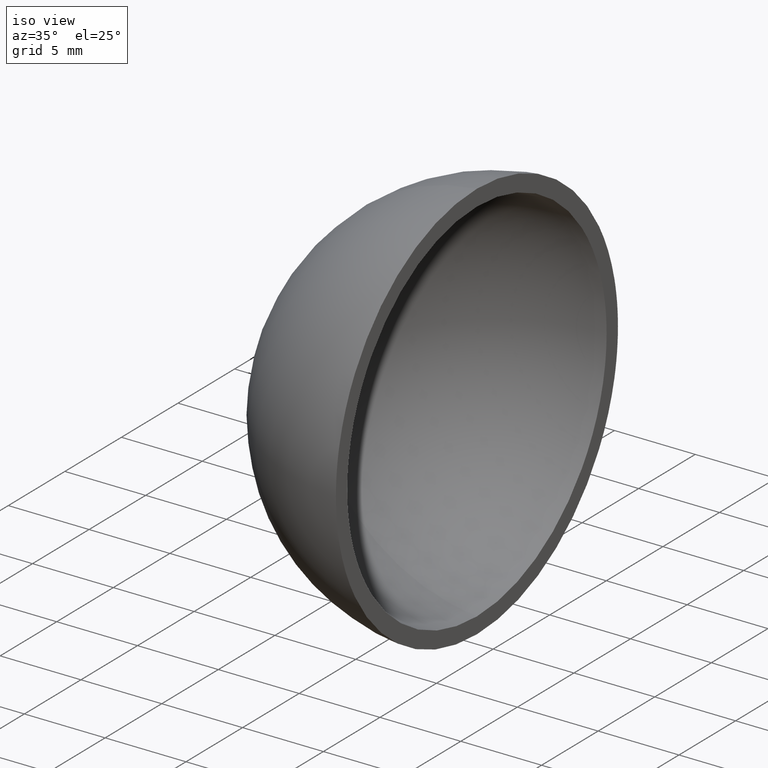
[diagram: clean part render]
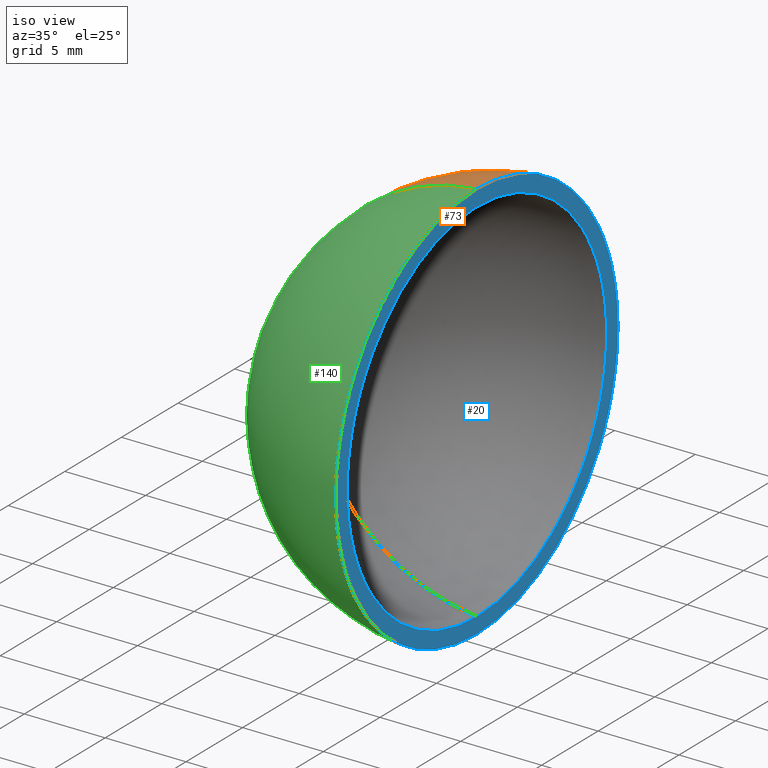
[diagram: same view with three faces highlighted in distinct colors, each labeled with its STEP entity id]
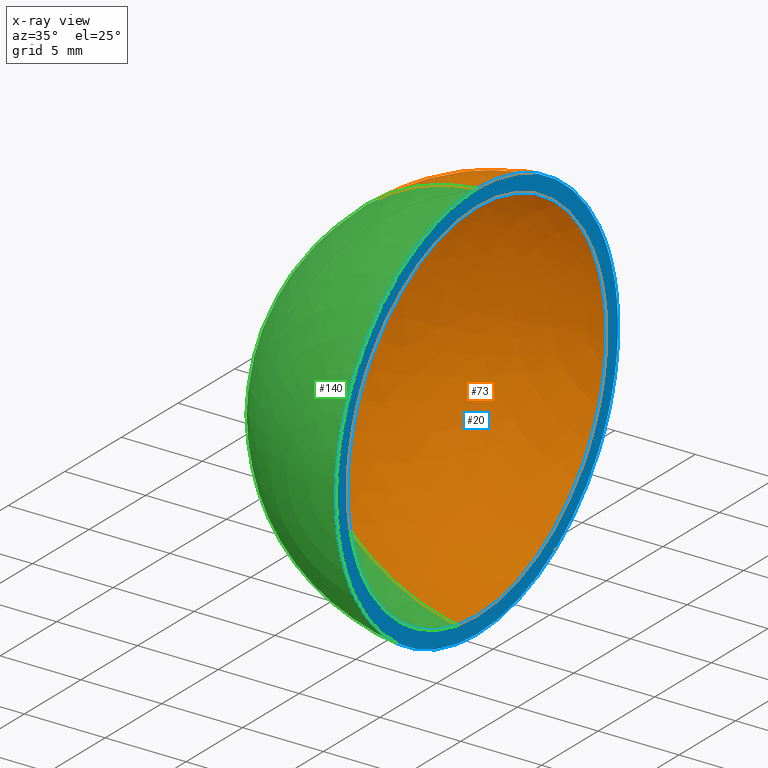
[diagram: x-ray of the same camera — body ghosted, the three highlighted faces saturated]
A machine part, iso view with three faces highlighted in distinct colors.
The next image is the same camera in x-ray (body ghosted, the three faces saturated) — at least one of them is partly hidden behind the body in this view.
Their STEP definitions:

[orange] entity #73 — the highlighted spherical surface has radius 12.5 mm.
#8 = ORIENTED_EDGE ( 'NONE', *, *, #170, .F. ) ;
#10 = ORIENTED_EDGE ( 'NONE', *, *, #102, .F. ) ;
#12 = DIRECTION ( 'NONE',  ( 0.0000000000000000000, -1.224646799147353200E-016, -1.000000000000000000 ) ) ;
#19 = FACE_OUTER_BOUND ( 'NONE', #130, .T. ) ;
#27 = DIRECTION ( 'NONE',  ( 1.000000000000000000, -0.0000000000000000000, -0.0000000000000000000 ) ) ;
#28 = AXIS2_PLACEMENT_3D ( 'NONE', #163, #91, #12 ) ;
#37 = EDGE_CURVE ( 'NONE', #136, #99, #88, .T. ) ;
#39 = CIRCLE ( 'NONE', #28, 12.50000000000000000 ) ;
#41 = DIRECTION ( 'NONE',  ( 0.0000000000000000000, 0.0000000000000000000, 1.000000000000000000 ) ) ;
#47 = AXIS2_PLACEMENT_3D ( 'NONE', #167, #67, #162 ) ;
#56 = CARTESIAN_POINT ( 'NONE',  ( 0.0000000000000000000, 0.0000000000000000000, 0.0000000000000000000 ) ) ;
#64 = CARTESIAN_POINT ( 'NONE',  ( -12.50000000000000000, 0.0000000000000000000, 7.654042494670957600E-016 ) ) ;
#67 = DIRECTION ( 'NONE',  ( 0.0000000000000000000, -1.000000000000000000, 0.0000000000000000000 ) ) ;
#73 = ADVANCED_FACE ( 'NONE', ( #19 ), #159, .T. ) ;
#76 = VERTEX_POINT ( 'NONE', #125 ) ;
#78 = DIRECTION ( 'NONE',  ( 0.0000000000000000000, 0.0000000000000000000, -1.000000000000000000 ) ) ;
#81 = DIRECTION ( 'NONE',  ( 0.0000000000000000000, 1.000000000000000000, 0.0000000000000000000 ) ) ;
#84 = CARTESIAN_POINT ( 'NONE',  ( -0.9999999999999965600, 0.0000000000000000000, 12.45993579437711100 ) ) ;
#88 = CIRCLE ( 'NONE', #138, 12.50000000000000000 ) ;
#91 = DIRECTION ( 'NONE',  ( 0.0000000000000000000, -1.000000000000000000, 1.224646799147353200E-016 ) ) ;
#95 = ORIENTED_EDGE ( 'NONE', *, *, #37, .T. ) ;
#97 = AXIS2_PLACEMENT_3D ( 'NONE', #148, #27, #78 ) ;
#99 = VERTEX_POINT ( 'NONE', #84 ) ;
#101 = CIRCLE ( 'NONE', #97, 12.45993579437711300 ) ;
#102 = EDGE_CURVE ( 'NONE', #136, #76, #39, .T. ) ;
#125 = CARTESIAN_POINT ( 'NONE',  ( -0.9999999999999965600, -1.525902048816546600E-015, -12.45993579437711100 ) ) ;
#130 = EDGE_LOOP ( 'NONE', ( #10, #95, #8 ) ) ;
#136 = VERTEX_POINT ( 'NONE', #64 ) ;
#138 = AXIS2_PLACEMENT_3D ( 'NONE', #56, #81, #41 ) ;
#148 = CARTESIAN_POINT ( 'NONE',  ( -0.9999999999999967800, 0.0000000000000000000, 0.0000000000000000000 ) ) ;
#159 = SPHERICAL_SURFACE ( 'NONE', #47, 12.50000000000000000 ) ;
#162 = DIRECTION ( 'NONE',  ( 0.0000000000000000000, 0.0000000000000000000, 1.000000000000000000 ) ) ;
#163 = CARTESIAN_POINT ( 'NONE',  ( 0.0000000000000000000, 0.0000000000000000000, 0.0000000000000000000 ) ) ;
#167 = CARTESIAN_POINT ( 'NONE',  ( 0.0000000000000000000, 0.0000000000000000000, 0.0000000000000000000 ) ) ;
#170 = EDGE_CURVE ( 'NONE', #76, #99, #101, .T. ) ;

[blue] entity #20 — the highlighted planar face has unit normal (-1, 0, 0).
#5 = ORIENTED_EDGE ( 'NONE', *, *, #30, .F. ) ;
#13 = CIRCLE ( 'NONE', #25, 11.45643923738959900 ) ;
#14 = DIRECTION ( 'NONE',  ( 0.0000000000000000000, 0.0000000000000000000, -1.000000000000000000 ) ) ;
#15 = ORIENTED_EDGE ( 'NONE', *, *, #17, .T. ) ;
#17 = EDGE_CURVE ( 'NONE', #99, #76, #57, .T. ) ;
#18 = AXIS2_PLACEMENT_3D ( 'NONE', #115, #112, #51 ) ;
#20 = ADVANCED_FACE ( 'NONE', ( #98, #90 ), #161, .F. ) ;
#24 = ORIENTED_EDGE ( 'NONE', *, *, #170, .T. ) ;
#25 = AXIS2_PLACEMENT_3D ( 'NONE', #160, #83, #105 ) ;
#27 = DIRECTION ( 'NONE',  ( 1.000000000000000000, -0.0000000000000000000, -0.0000000000000000000 ) ) ;
#30 = EDGE_CURVE ( 'NONE', #36, #156, #124, .T. ) ;
#36 = VERTEX_POINT ( 'NONE', #103 ) ;
#40 = DIRECTION ( 'NONE',  ( 0.0000000000000000000, 0.0000000000000000000, 1.000000000000000000 ) ) ;
#51 = DIRECTION ( 'NONE',  ( 0.0000000000000000000, 0.0000000000000000000, -1.000000000000000000 ) ) ;
#57 = CIRCLE ( 'NONE', #18, 12.45993579437711300 ) ;
#60 = AXIS2_PLACEMENT_3D ( 'NONE', #82, #131, #40 ) ;
#61 = ORIENTED_EDGE ( 'NONE', *, *, #120, .F. ) ;
#68 = CARTESIAN_POINT ( 'NONE',  ( -0.9999999999999967800, -1.403009164169531900E-015, -11.45643923738959900 ) ) ;
#76 = VERTEX_POINT ( 'NONE', #125 ) ;
#78 = DIRECTION ( 'NONE',  ( 0.0000000000000000000, 0.0000000000000000000, -1.000000000000000000 ) ) ;
#79 = AXIS2_PLACEMENT_3D ( 'NONE', #89, #107, #14 ) ;
#82 = CARTESIAN_POINT ( 'NONE',  ( -0.9999999999999967800, 0.0000000000000000000, 11.45643923738959900 ) ) ;
#83 = DIRECTION ( 'NONE',  ( 1.000000000000000000, -0.0000000000000000000, -0.0000000000000000000 ) ) ;
#84 = CARTESIAN_POINT ( 'NONE',  ( -0.9999999999999965600, 0.0000000000000000000, 12.45993579437711100 ) ) ;
#89 = CARTESIAN_POINT ( 'NONE',  ( -0.9999999999999967800, 0.0000000000000000000, 0.0000000000000000000 ) ) ;
#90 = FACE_OUTER_BOUND ( 'NONE', #158, .T. ) ;
#97 = AXIS2_PLACEMENT_3D ( 'NONE', #148, #27, #78 ) ;
#98 = FACE_BOUND ( 'NONE', #129, .T. ) ;
#99 = VERTEX_POINT ( 'NONE', #84 ) ;
#101 = CIRCLE ( 'NONE', #97, 12.45993579437711300 ) ;
#103 = CARTESIAN_POINT ( 'NONE',  ( -0.9999999999999967800, 0.0000000000000000000, 11.45643923738959900 ) ) ;
#105 = DIRECTION ( 'NONE',  ( 0.0000000000000000000, 0.0000000000000000000, -1.000000000000000000 ) ) ;
#107 = DIRECTION ( 'NONE',  ( 1.000000000000000000, -0.0000000000000000000, -0.0000000000000000000 ) ) ;
#112 = DIRECTION ( 'NONE',  ( 1.000000000000000000, -0.0000000000000000000, -0.0000000000000000000 ) ) ;
#115 = CARTESIAN_POINT ( 'NONE',  ( -0.9999999999999967800, 0.0000000000000000000, 0.0000000000000000000 ) ) ;
#120 = EDGE_CURVE ( 'NONE', #156, #36, #13, .T. ) ;
#124 = CIRCLE ( 'NONE', #79, 11.45643923738959900 ) ;
#125 = CARTESIAN_POINT ( 'NONE',  ( -0.9999999999999965600, -1.525902048816546600E-015, -12.45993579437711100 ) ) ;
#129 = EDGE_LOOP ( 'NONE', ( #5, #61 ) ) ;
#131 = DIRECTION ( 'NONE',  ( -1.000000000000000000, 0.0000000000000000000, 0.0000000000000000000 ) ) ;
#148 = CARTESIAN_POINT ( 'NONE',  ( -0.9999999999999967800, 0.0000000000000000000, 0.0000000000000000000 ) ) ;
#156 = VERTEX_POINT ( 'NONE', #68 ) ;
#158 = EDGE_LOOP ( 'NONE', ( #15, #24 ) ) ;
#160 = CARTESIAN_POINT ( 'NONE',  ( -0.9999999999999967800, 0.0000000000000000000, 0.0000000000000000000 ) ) ;
#161 = PLANE ( 'NONE',  #60 ) ;
#170 = EDGE_CURVE ( 'NONE', #76, #99, #101, .T. ) ;

[green] entity #140 — the highlighted spherical surface has radius 12.5 mm.
#12 = DIRECTION ( 'NONE',  ( 0.0000000000000000000, -1.224646799147353200E-016, -1.000000000000000000 ) ) ;
#16 = DIRECTION ( 'NONE',  ( 0.0000000000000000000, 0.0000000000000000000, 1.000000000000000000 ) ) ;
#17 = EDGE_CURVE ( 'NONE', #99, #76, #57, .T. ) ;
#18 = AXIS2_PLACEMENT_3D ( 'NONE', #115, #112, #51 ) ;
#26 = EDGE_LOOP ( 'NONE', ( #110, #168, #69 ) ) ;
#28 = AXIS2_PLACEMENT_3D ( 'NONE', #163, #91, #12 ) ;
#37 = EDGE_CURVE ( 'NONE', #136, #99, #88, .T. ) ;
#39 = CIRCLE ( 'NONE', #28, 12.50000000000000000 ) ;
#41 = DIRECTION ( 'NONE',  ( 0.0000000000000000000, 0.0000000000000000000, 1.000000000000000000 ) ) ;
#43 = CARTESIAN_POINT ( 'NONE',  ( 0.0000000000000000000, 0.0000000000000000000, 0.0000000000000000000 ) ) ;
#44 = AXIS2_PLACEMENT_3D ( 'NONE', #43, #96, #16 ) ;
#51 = DIRECTION ( 'NONE',  ( 0.0000000000000000000, 0.0000000000000000000, -1.000000000000000000 ) ) ;
#56 = CARTESIAN_POINT ( 'NONE',  ( 0.0000000000000000000, 0.0000000000000000000, 0.0000000000000000000 ) ) ;
#57 = CIRCLE ( 'NONE', #18, 12.45993579437711300 ) ;
#64 = CARTESIAN_POINT ( 'NONE',  ( -12.50000000000000000, 0.0000000000000000000, 7.654042494670957600E-016 ) ) ;
#65 = SPHERICAL_SURFACE ( 'NONE', #44, 12.50000000000000000 ) ;
#69 = ORIENTED_EDGE ( 'NONE', *, *, #17, .F. ) ;
#76 = VERTEX_POINT ( 'NONE', #125 ) ;
#81 = DIRECTION ( 'NONE',  ( 0.0000000000000000000, 1.000000000000000000, 0.0000000000000000000 ) ) ;
#84 = CARTESIAN_POINT ( 'NONE',  ( -0.9999999999999965600, 0.0000000000000000000, 12.45993579437711100 ) ) ;
#88 = CIRCLE ( 'NONE', #138, 12.50000000000000000 ) ;
#91 = DIRECTION ( 'NONE',  ( 0.0000000000000000000, -1.000000000000000000, 1.224646799147353200E-016 ) ) ;
#96 = DIRECTION ( 'NONE',  ( 0.0000000000000000000, -1.000000000000000000, 0.0000000000000000000 ) ) ;
#99 = VERTEX_POINT ( 'NONE', #84 ) ;
#102 = EDGE_CURVE ( 'NONE', #136, #76, #39, .T. ) ;
#110 = ORIENTED_EDGE ( 'NONE', *, *, #37, .F. ) ;
#112 = DIRECTION ( 'NONE',  ( 1.000000000000000000, -0.0000000000000000000, -0.0000000000000000000 ) ) ;
#115 = CARTESIAN_POINT ( 'NONE',  ( -0.9999999999999967800, 0.0000000000000000000, 0.0000000000000000000 ) ) ;
#125 = CARTESIAN_POINT ( 'NONE',  ( -0.9999999999999965600, -1.525902048816546600E-015, -12.45993579437711100 ) ) ;
#136 = VERTEX_POINT ( 'NONE', #64 ) ;
#138 = AXIS2_PLACEMENT_3D ( 'NONE', #56, #81, #41 ) ;
#140 = ADVANCED_FACE ( 'NONE', ( #169 ), #65, .T. ) ;
#163 = CARTESIAN_POINT ( 'NONE',  ( 0.0000000000000000000, 0.0000000000000000000, 0.0000000000000000000 ) ) ;
#168 = ORIENTED_EDGE ( 'NONE', *, *, #102, .T. ) ;
#169 = FACE_OUTER_BOUND ( 'NONE', #26, .T. ) ;